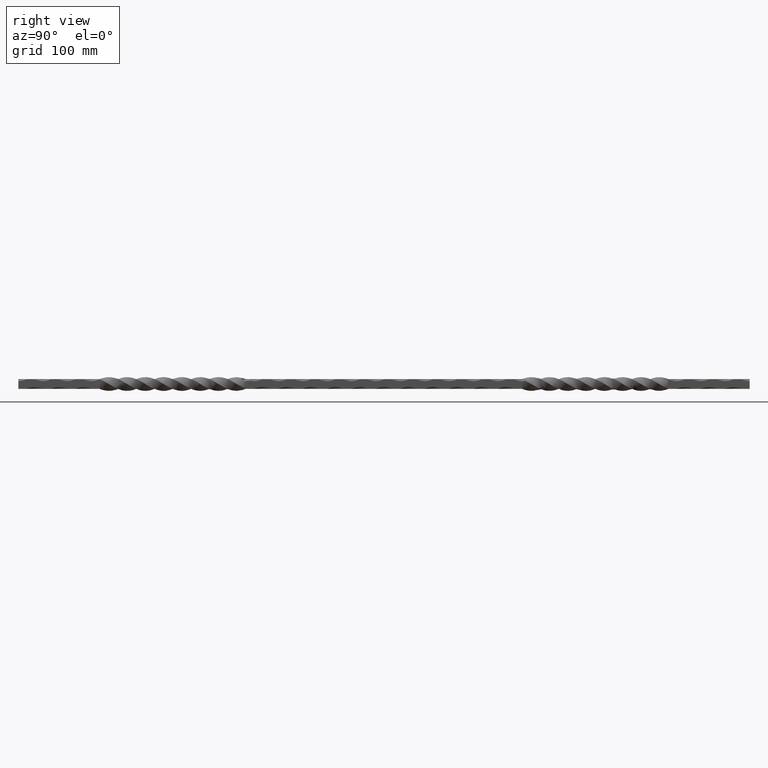
[diagram: clean part render]
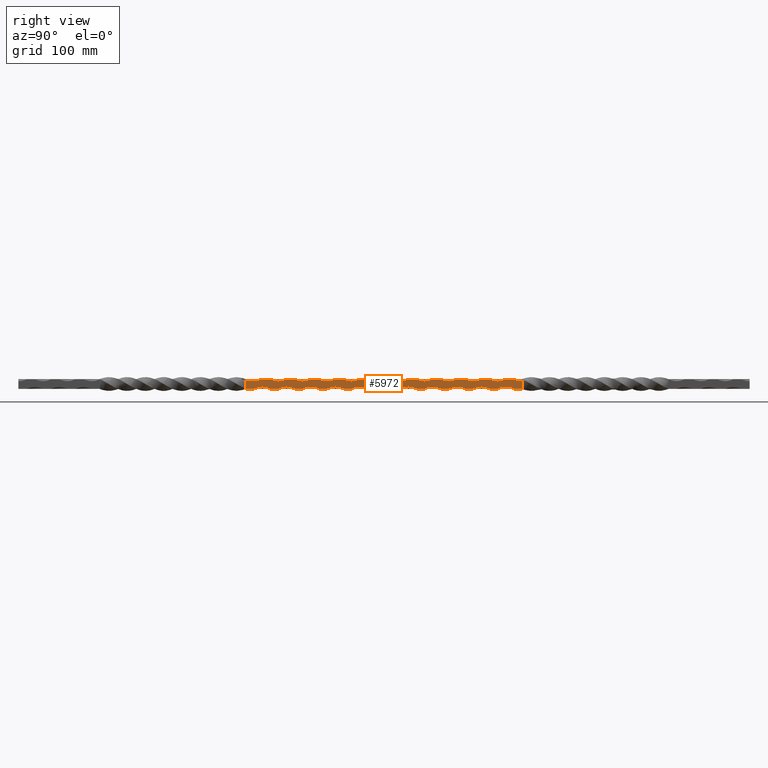
[diagram: same view with one face highlighted and labeled with its STEP entity id]
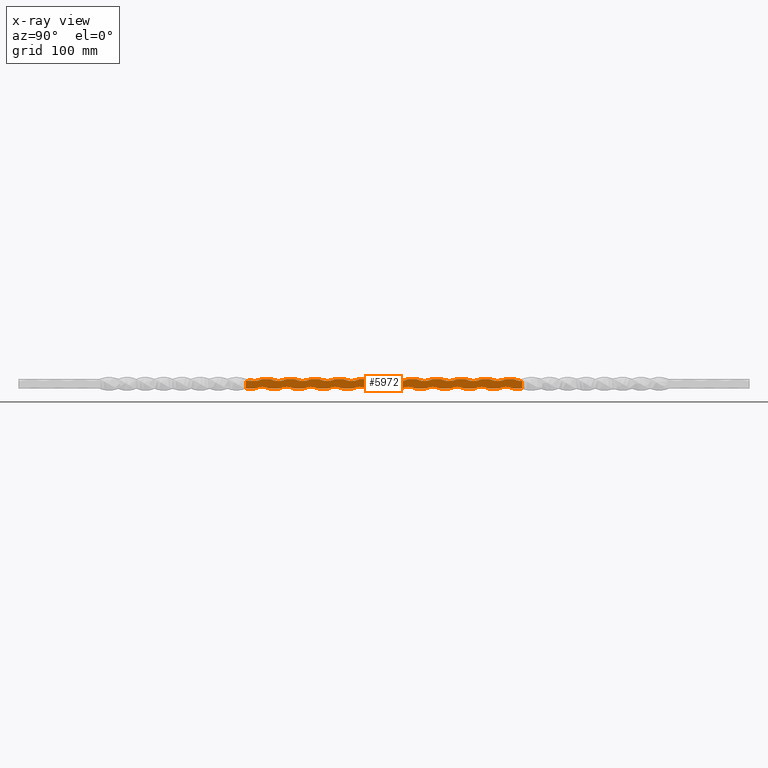
[diagram: x-ray of the same camera — body ghosted, the highlighted face saturated]
A machine part, right view. The second image highlights one B-rep face of the part: STEP entity #5972.
The next image is the same camera in x-ray: the body ghosted, the highlighted face saturated — about 0% of this face is hidden behind the body in this view.
In plain terms, the highlighted planar face has unit normal (-1, 0, -0).
Its self-contained STEP definition (entity closure, byte-faithful):
#19 = CARTESIAN_POINT ( 'NONE',  ( 6.000000002061132598, 9.999999999999980460, -6.000000002061201876 ) ) ;
#41 = LINE ( 'NONE', #7971, #4626 ) ;
#81 = DIRECTION ( 'NONE',  ( 1.000000000000000000, -0.000000000000000000, 5.829654613449112460E-10 ) ) ;
#82 = CARTESIAN_POINT ( 'NONE',  ( 6.000000002061127269, 69.99999999999998579, -6.000000002061191218 ) ) ;
#93 = CARTESIAN_POINT ( 'NONE',  ( 6.000000000000000888, -169.9999999999999716, 0.000000000000000000 ) ) ;
#97 = CARTESIAN_POINT ( 'NONE',  ( 6.000000000000009770, 29.99999999999997158, 6.000000000000015099 ) ) ;
#149 = VERTEX_POINT ( 'NONE', #82 ) ;
#160 = DIRECTION ( 'NONE',  ( -5.829654569535532000E-10, 0.000000000000000000, 1.000000000000000000 ) ) ;
#179 = DIRECTION ( 'NONE',  ( 5.829579466213275269E-10, 0.000000000000000000, -1.000000000000000000 ) ) ;
#192 = ORIENTED_EDGE ( 'NONE', *, *, #12286, .T. ) ;
#276 = CARTESIAN_POINT ( 'NONE',  ( 6.000000012991585585, 89.99999999999997158, -24.75000000206109974 ) ) ;
#280 = EDGE_CURVE ( 'NONE', #6705, #7886, #1454, .T. ) ;
#310 = LINE ( 'NONE', #3577, #1914 ) ;
#324 = CIRCLE ( 'NONE', #8483, 21.24999999999991829 ) ;
#371 = EDGE_CURVE ( 'NONE', #11529, #8957, #324, .T. ) ;
#387 = CARTESIAN_POINT ( 'NONE',  ( 6.000000012991606013, -150.0000000000000284, -24.75000000206114237 ) ) ;
#422 = VERTEX_POINT ( 'NONE', #3006 ) ;
#434 = ORIENTED_EDGE ( 'NONE', *, *, #7089, .F. ) ;
#451 = CARTESIAN_POINT ( 'NONE',  ( 6.000000000000000888, 16.97056276331698754, 6.000000000000000888 ) ) ;
#505 = CARTESIAN_POINT ( 'NONE',  ( 6.000000006995586332, 16.97056276331698754, -5.999999997126680640 ) ) ;
#547 = VERTEX_POINT ( 'NONE', #1356 ) ;
#559 = VERTEX_POINT ( 'NONE', #6486 ) ;
#561 = ORIENTED_EDGE ( 'NONE', *, *, #10464, .T. ) ;
#601 = EDGE_CURVE ( 'NONE', #10573, #2448, #11321, .T. ) ;
#639 = AXIS2_PLACEMENT_3D ( 'NONE', #1816, #5929, #11808 ) ;
#648 = ORIENTED_EDGE ( 'NONE', *, *, #8787, .F. ) ;
#657 = VERTEX_POINT ( 'NONE', #6652 ) ;
#671 = EDGE_CURVE ( 'NONE', #1671, #721, #9749, .T. ) ;
#677 = DIRECTION ( 'NONE',  ( -1.000000000000000000, 0.000000000000000000, -5.829579280190910331E-10 ) ) ;
#721 = VERTEX_POINT ( 'NONE', #12563 ) ;
#742 = ORIENTED_EDGE ( 'NONE', *, *, #9126, .F. ) ;
#751 = ORIENTED_EDGE ( 'NONE', *, *, #3923, .T. ) ;
#770 = CARTESIAN_POINT ( 'NONE',  ( 6.000000000000000888, 16.97056276331698754, 6.000000000000000888 ) ) ;
#786 = EDGE_CURVE ( 'NONE', #4450, #10603, #5357, .T. ) ;
#805 = ORIENTED_EDGE ( 'NONE', *, *, #601, .T. ) ;
#818 = ORIENTED_EDGE ( 'NONE', *, *, #7917, .F. ) ;
#867 = AXIS2_PLACEMENT_3D ( 'NONE', #12920, #6889, #3094 ) ;
#877 = EDGE_CURVE ( 'NONE', #1721, #1924, #9441, .T. ) ;
#881 = ORIENTED_EDGE ( 'NONE', *, *, #6906, .F. ) ;
#942 = VERTEX_POINT ( 'NONE', #7262 ) ;
#953 = VECTOR ( 'NONE', #3741, 1000.000000000000000 ) ;
#968 = VERTEX_POINT ( 'NONE', #12373 ) ;
#1015 = EDGE_CURVE ( 'NONE', #11370, #1924, #3786, .T. ) ;
#1074 = EDGE_CURVE ( 'NONE', #6969, #942, #4582, .T. ) ;
#1112 = VERTEX_POINT ( 'NONE', #11932 ) ;
#1114 = VECTOR ( 'NONE', #9289, 1000.000000000000000 ) ;
#1135 = DIRECTION ( 'NONE',  ( 1.000000000000000000, -0.000000000000000000, 5.829654613449112460E-10 ) ) ;
#1197 = DIRECTION ( 'NONE',  ( -0.000000000000000000, -1.000000000000000000, -0.000000000000000000 ) ) ;
#1294 = CARTESIAN_POINT ( 'NONE',  ( 6.000000006995586332, 16.97056276331698754, -5.999999997126680640 ) ) ;
#1331 = VERTEX_POINT ( 'NONE', #11615 ) ;
#1333 = VERTEX_POINT ( 'NONE', #4748 ) ;
#1334 = DIRECTION ( 'NONE',  ( 1.000000000000000000, -0.000000000000000000, 5.829654613449112460E-10 ) ) ;
#1356 = CARTESIAN_POINT ( 'NONE',  ( 6.000000000000004441, 69.99999999999997158, 6.000000000000001776 ) ) ;
#1361 = EDGE_CURVE ( 'NONE', #5982, #3907, #8517, .T. ) ;
#1396 = DIRECTION ( 'NONE',  ( 5.829579466213274235E-10, 0.000000000000000000, -1.000000000000000000 ) ) ;
#1397 = CARTESIAN_POINT ( 'NONE',  ( 6.000000006995586332, 80.00000000925209065, -6.000000002061185000 ) ) ;
#1404 = LINE ( 'NONE', #7958, #7366 ) ;
#1454 = LINE ( 'NONE', #8541, #10392 ) ;
#1456 = LINE ( 'NONE', #505, #4117 ) ;
#1462 = VERTEX_POINT ( 'NONE', #4966 ) ;
#1638 = EDGE_CURVE ( 'NONE', #11038, #9303, #1456, .T. ) ;
#1643 = VERTEX_POINT ( 'NONE', #7767 ) ;
#1668 = CARTESIAN_POINT ( 'NONE',  ( 6.000000000000000888, 16.97056276331698754, 6.000000000000000888 ) ) ;
#1671 = VERTEX_POINT ( 'NONE', #11244 ) ;
#1721 = VERTEX_POINT ( 'NONE', #2361 ) ;
#1731 = CIRCLE ( 'NONE', #2925, 21.24999999999992184 ) ;
#1747 = DIRECTION ( 'NONE',  ( -5.829654569535532000E-10, 1.632680918566413498E-15, 1.000000000000000000 ) ) ;
#1816 = CARTESIAN_POINT ( 'NONE',  ( 5.999999989069399575, -10.00000000000000888, 24.74999999999991829 ) ) ;
#1834 = VECTOR ( 'NONE', #12123, 1000.000000000000000 ) ;
#1902 = EDGE_LOOP ( 'NONE', ( #9142, #6996, #434, #10215, #6535, #9366, #2985, #9087, #9060, #2307, #7868, #7276, #7219, #6803, #6982, #805, #5395, #5411, #881, #8704, #6014, #192, #1951, #10940, #4816, #818, #8444, #10457, #742, #4961, #4872, #751, #10752, #7962, #9888, #3119, #9363, #6210, #9333, #9166, #10601, #3649, #648, #2202, #8850, #8922, #11090, #561, #12234 ) ) ;
#1914 = VECTOR ( 'NONE', #11580, 1000.000000000000000 ) ;
#1924 = VERTEX_POINT ( 'NONE', #5282 ) ;
#1929 = DIRECTION ( 'NONE',  ( -0.000000000000000000, -1.000000000000000000, -0.000000000000000000 ) ) ;
#1951 = ORIENTED_EDGE ( 'NONE', *, *, #5834, .F. ) ;
#1956 = DIRECTION ( 'NONE',  ( -0.000000000000000000, -1.000000000000000000, -0.000000000000000000 ) ) ;
#2008 = CARTESIAN_POINT ( 'NONE',  ( 5.999999989069398687, -100.0000000000000000, 24.74999999999991829 ) ) ;
#2134 = AXIS2_PLACEMENT_3D ( 'NONE', #276, #10168, #12222 ) ;
#2144 = EDGE_CURVE ( 'NONE', #547, #1462, #310, .T. ) ;
#2183 = VECTOR ( 'NONE', #12812, 1000.000000000000000 ) ;
#2187 = VERTEX_POINT ( 'NONE', #19 ) ;
#2202 = ORIENTED_EDGE ( 'NONE', *, *, #1015, .T. ) ;
#2230 = LINE ( 'NONE', #9346, #2868 ) ;
#2295 = CARTESIAN_POINT ( 'NONE',  ( 6.000000006995586332, 20.00000000925207999, -6.000000002061194770 ) ) ;
#2301 = EDGE_CURVE ( 'NONE', #968, #2448, #4420, .T. ) ;
#2307 = ORIENTED_EDGE ( 'NONE', *, *, #6754, .T. ) ;
#2313 = AXIS2_PLACEMENT_3D ( 'NONE', #5383, #6382, #1396 ) ;
#2328 = EDGE_CURVE ( 'NONE', #11529, #9568, #6454, .T. ) ;
#2353 = CARTESIAN_POINT ( 'NONE',  ( 6.000000001457414633, 169.9999999999999716, 3.499999999999984901 ) ) ;
#2360 = VECTOR ( 'NONE', #11544, 1000.000000000000000 ) ;
#2361 = CARTESIAN_POINT ( 'NONE',  ( 6.000000000000001776, -110.0000000000000284, 6.000000000000000000 ) ) ;
#2364 = DIRECTION ( 'NONE',  ( -5.829654569535532000E-10, 1.959217102279696040E-15, 1.000000000000000000 ) ) ;
#2374 = DIRECTION ( 'NONE',  ( -1.000000000000000000, 0.000000000000000000, -5.829579280190910331E-10 ) ) ;
#2383 = AXIS2_PLACEMENT_3D ( 'NONE', #9114, #11168, #179 ) ;
#2414 = EDGE_CURVE ( 'NONE', #7414, #7763, #2230, .T. ) ;
#2440 = LINE ( 'NONE', #7209, #10263 ) ;
#2448 = VERTEX_POINT ( 'NONE', #10909 ) ;
#2470 = CARTESIAN_POINT ( 'NONE',  ( 6.000000006995586332, 169.9999999999999716, -5.999999997126680640 ) ) ;
#2561 = DIRECTION ( 'NONE',  ( -5.829654569535532000E-10, 1.795949010423054769E-15, 1.000000000000000000 ) ) ;
#2594 = CARTESIAN_POINT ( 'NONE',  ( 5.999999999999978684, 159.9999999999999716, 5.999999999999993783 ) ) ;
#2609 = VERTEX_POINT ( 'NONE', #1397 ) ;
#2621 = DIRECTION ( 'NONE',  ( -5.829654569535532000E-10, 1.959217102279696040E-15, 1.000000000000000000 ) ) ;
#2657 = VERTEX_POINT ( 'NONE', #8457 ) ;
#2787 = VECTOR ( 'NONE', #7838, 1000.000000000000000 ) ;
#2796 = LINE ( 'NONE', #12981, #1834 ) ;
#2802 = VERTEX_POINT ( 'NONE', #3544 ) ;
#2868 = VECTOR ( 'NONE', #1929, 1000.000000000000000 ) ;
#2925 = AXIS2_PLACEMENT_3D ( 'NONE', #8933, #6866, #6908 ) ;
#2931 = VECTOR ( 'NONE', #8183, 1000.000000000000000 ) ;
#2985 = ORIENTED_EDGE ( 'NONE', *, *, #12553, .F. ) ;
#3002 = CIRCLE ( 'NONE', #2383, 21.24999999999992184 ) ;
#3005 = EDGE_CURVE ( 'NONE', #547, #1643, #8648, .T. ) ;
#3006 = CARTESIAN_POINT ( 'NONE',  ( 6.000000001457414633, -169.9999999999984084, 3.499999999141158114 ) ) ;
#3018 = EDGE_CURVE ( 'NONE', #559, #657, #6275, .T. ) ;
#3050 = VERTEX_POINT ( 'NONE', #4276 ) ;
#3067 = CARTESIAN_POINT ( 'NONE',  ( 6.000000002061121940, 129.9999999999999716, -6.000000002061181448 ) ) ;
#3068 = DIRECTION ( 'NONE',  ( -5.829654569535532000E-10, 1.959217102279696040E-15, 1.000000000000000000 ) ) ;
#3087 = DIRECTION ( 'NONE',  ( 1.000000000000000000, -0.000000000000000000, 5.829654613449112460E-10 ) ) ;
#3094 = DIRECTION ( 'NONE',  ( -5.829654569535532000E-10, 1.959217102279696040E-15, 1.000000000000000000 ) ) ;
#3119 = ORIENTED_EDGE ( 'NONE', *, *, #786, .T. ) ;
#3275 = LINE ( 'NONE', #9177, #11240 ) ;
#3282 = CARTESIAN_POINT ( 'NONE',  ( 5.999999989069397799, -160.0000000000000000, 24.74999999999991829 ) ) ;
#3418 = CARTESIAN_POINT ( 'NONE',  ( 6.000000006995586332, -39.99999999074793067, -6.000000002061205429 ) ) ;
#3544 = CARTESIAN_POINT ( 'NONE',  ( 6.000000000000003553, 9.999999999999966249, 6.000000000000001776 ) ) ;
#3564 = LINE ( 'NONE', #7745, #2787 ) ;
#3566 = CARTESIAN_POINT ( 'NONE',  ( 5.999999989069401352, 109.9999999999999858, 24.74999999999992184 ) ) ;
#3577 = CARTESIAN_POINT ( 'NONE',  ( 6.000000000000000888, 16.97056276331698754, 6.000000000000000888 ) ) ;
#3593 = VECTOR ( 'NONE', #5766, 1000.000000000000000 ) ;
#3602 = CIRCLE ( 'NONE', #7483, 21.24999999999991118 ) ;
#3649 = ORIENTED_EDGE ( 'NONE', *, *, #6439, .T. ) ;
#3674 = EDGE_CURVE ( 'NONE', #12117, #11228, #3002, .T. ) ;
#3733 = EDGE_CURVE ( 'NONE', #422, #11706, #9718, .T. ) ;
#3741 = DIRECTION ( 'NONE',  ( -0.000000000000000000, -1.000000000000000000, -0.000000000000000000 ) ) ;
#3786 = LINE ( 'NONE', #9705, #10375 ) ;
#3834 = DIRECTION ( 'NONE',  ( -5.829654569535532000E-10, 3.918434204559392081E-15, 1.000000000000000000 ) ) ;
#3907 = VERTEX_POINT ( 'NONE', #12634 ) ;
#3923 = EDGE_CURVE ( 'NONE', #2657, #1643, #5002, .T. ) ;
#3938 = CARTESIAN_POINT ( 'NONE',  ( 6.000000000000000888, 16.97056276331698754, 6.000000000000000888 ) ) ;
#3942 = LINE ( 'NONE', #4838, #953 ) ;
#3966 = EDGE_CURVE ( 'NONE', #4450, #1462, #3602, .T. ) ;
#3989 = CIRCLE ( 'NONE', #867, 21.24999999999991473 ) ;
#4097 = EDGE_CURVE ( 'NONE', #10573, #2187, #1404, .T. ) ;
#4117 = VECTOR ( 'NONE', #7583, 1000.000000000000000 ) ;
#4125 = CARTESIAN_POINT ( 'NONE',  ( 6.000000000000002665, -50.00000000000002842, 6.000000000000000000 ) ) ;
#4193 = AXIS2_PLACEMENT_3D ( 'NONE', #4434, #12390, #9345 ) ;
#4225 = AXIS2_PLACEMENT_3D ( 'NONE', #12471, #5467, #8682 ) ;
#4233 = DIRECTION ( 'NONE',  ( 1.000000000000000000, -0.000000000000000000, 5.829654613449112460E-10 ) ) ;
#4276 = CARTESIAN_POINT ( 'NONE',  ( 6.000000002061145921, -140.0000000000000000, -6.000000002061227633 ) ) ;
#4340 = DIRECTION ( 'NONE',  ( 5.829579466213274235E-10, 0.000000000000000000, -1.000000000000000000 ) ) ;
#4420 = LINE ( 'NONE', #8602, #9444 ) ;
#4434 = CARTESIAN_POINT ( 'NONE',  ( 6.000000012991590914, 29.99999999999997158, -24.75000000206111039 ) ) ;
#4450 = VERTEX_POINT ( 'NONE', #4618 ) ;
#4499 = EDGE_CURVE ( 'NONE', #6969, #8782, #4681, .T. ) ;
#4568 = DIRECTION ( 'NONE',  ( 1.000000000000000000, -0.000000000000000000, 5.829654613449112460E-10 ) ) ;
#4582 = CIRCLE ( 'NONE', #639, 21.24999999999991473 ) ;
#4609 = CARTESIAN_POINT ( 'NONE',  ( 5.999999989069402240, 139.9999999999999716, 24.74999999999992184 ) ) ;
#4618 = CARTESIAN_POINT ( 'NONE',  ( 6.000000000000003553, 39.99999999999996447, 6.000000000000001776 ) ) ;
#4626 = VECTOR ( 'NONE', #4821, 1000.000000000000000 ) ;
#4681 = LINE ( 'NONE', #770, #3593 ) ;
#4701 = VECTOR ( 'NONE', #12089, 1000.000000000000000 ) ;
#4748 = CARTESIAN_POINT ( 'NONE',  ( 6.000000006995586332, -159.9999999907479378, -6.000000002061226745 ) ) ;
#4816 = ORIENTED_EDGE ( 'NONE', *, *, #4997, .F. ) ;
#4821 = DIRECTION ( 'NONE',  ( 5.829654613449112460E-10, 0.000000000000000000, -1.000000000000000000 ) ) ;
#4838 = CARTESIAN_POINT ( 'NONE',  ( 6.000000000000000888, 16.97056276331698754, 6.000000000000000888 ) ) ;
#4841 = CARTESIAN_POINT ( 'NONE',  ( 6.000000006995586332, -169.9999999999999716, -5.999999997126680640 ) ) ;
#4872 = ORIENTED_EDGE ( 'NONE', *, *, #6248, .F. ) ;
#4888 = PLANE ( 'NONE',  #5557 ) ;
#4961 = ORIENTED_EDGE ( 'NONE', *, *, #671, .T. ) ;
#4966 = CARTESIAN_POINT ( 'NONE',  ( 6.000000000000009770, 59.99999999999997158, 6.000000000000015099 ) ) ;
#4997 = EDGE_CURVE ( 'NONE', #12466, #11228, #3275, .T. ) ;
#5002 = LINE ( 'NONE', #451, #2360 ) ;
#5170 = VERTEX_POINT ( 'NONE', #10405 ) ;
#5171 = CARTESIAN_POINT ( 'NONE',  ( 6.000000000000011546, 149.9999999999999716, 6.000000000000015099 ) ) ;
#5227 = AXIS2_PLACEMENT_3D ( 'NONE', #3282, #1334, #160 ) ;
#5270 = LINE ( 'NONE', #9800, #12312 ) ;
#5282 = CARTESIAN_POINT ( 'NONE',  ( 6.000000000000007994, -90.00000000000002842, 6.000000000000014211 ) ) ;
#5326 = CARTESIAN_POINT ( 'NONE',  ( 5.999999989069401352, 79.99999999999998579, 24.74999999999992184 ) ) ;
#5357 = LINE ( 'NONE', #3938, #8341 ) ;
#5383 = CARTESIAN_POINT ( 'NONE',  ( 6.000000012991595355, -30.00000000000002842, -24.75000000206112105 ) ) ;
#5387 = CARTESIAN_POINT ( 'NONE',  ( 6.000000006995586332, 16.97056276331698754, -5.999999997126680640 ) ) ;
#5395 = ORIENTED_EDGE ( 'NONE', *, *, #2301, .F. ) ;
#5411 = ORIENTED_EDGE ( 'NONE', *, *, #11115, .T. ) ;
#5467 = DIRECTION ( 'NONE',  ( -1.000000000000000000, 0.000000000000000000, -5.829579280190910331E-10 ) ) ;
#5476 = EDGE_CURVE ( 'NONE', #2609, #7763, #7961, .T. ) ;
#5557 = AXIS2_PLACEMENT_3D ( 'NONE', #7952, #7814, #10847 ) ;
#5702 = AXIS2_PLACEMENT_3D ( 'NONE', #5326, #4233, #2364 ) ;
#5714 = CARTESIAN_POINT ( 'NONE',  ( 6.000000002061140592, -80.00000000000001421, -6.000000002061217863 ) ) ;
#5766 = DIRECTION ( 'NONE',  ( -0.000000000000000000, -1.000000000000000000, -0.000000000000000000 ) ) ;
#5785 = VERTEX_POINT ( 'NONE', #3067 ) ;
#5799 = LINE ( 'NONE', #6832, #8951 ) ;
#5817 = CARTESIAN_POINT ( 'NONE',  ( 6.000000012991603349, -120.0000000000000568, -24.75000000206113526 ) ) ;
#5823 = AXIS2_PLACEMENT_3D ( 'NONE', #9068, #1135, #12947 ) ;
#5834 = EDGE_CURVE ( 'NONE', #12117, #5785, #2796, .T. ) ;
#5929 = DIRECTION ( 'NONE',  ( 1.000000000000000000, -0.000000000000000000, 5.829654613449112460E-10 ) ) ;
#5931 = DIRECTION ( 'NONE',  ( -0.000000000000000000, -1.000000000000000000, -0.000000000000000000 ) ) ;
#5972 = ADVANCED_FACE ( 'NONE', ( #6062 ), #4888, .F. ) ;
#5982 = VERTEX_POINT ( 'NONE', #9882 ) ;
#6014 = ORIENTED_EDGE ( 'NONE', *, *, #2414, .F. ) ;
#6062 = FACE_OUTER_BOUND ( 'NONE', #1902, .T. ) ;
#6210 = ORIENTED_EDGE ( 'NONE', *, *, #8463, .T. ) ;
#6223 = CIRCLE ( 'NONE', #8924, 21.24999999999991118 ) ;
#6248 = EDGE_CURVE ( 'NONE', #2657, #721, #6223, .T. ) ;
#6275 = CIRCLE ( 'NONE', #5227, 21.24999999999991473 ) ;
#6308 = CARTESIAN_POINT ( 'NONE',  ( 6.000000012991582921, 119.9999999999999716, -24.75000000206109263 ) ) ;
#6382 = DIRECTION ( 'NONE',  ( -1.000000000000000000, 0.000000000000000000, -5.829579280190910331E-10 ) ) ;
#6390 = DIRECTION ( 'NONE',  ( -0.000000000000000000, -1.000000000000000000, -0.000000000000000000 ) ) ;
#6419 = VERTEX_POINT ( 'NONE', #9676 ) ;
#6439 = EDGE_CURVE ( 'NONE', #10605, #1331, #3564, .T. ) ;
#6454 = LINE ( 'NONE', #7355, #1114 ) ;
#6486 = CARTESIAN_POINT ( 'NONE',  ( 6.000000001109611070, -164.9999999990313313, 4.096610447442614600 ) ) ;
#6499 = EDGE_CURVE ( 'NONE', #1112, #3050, #9658, .T. ) ;
#6516 = EDGE_CURVE ( 'NONE', #1112, #12883, #12014, .T. ) ;
#6535 = ORIENTED_EDGE ( 'NONE', *, *, #6499, .F. ) ;
#6537 = VECTOR ( 'NONE', #10684, 1000.000000000000000 ) ;
#6652 = CARTESIAN_POINT ( 'NONE',  ( 6.000000000000007105, -150.0000000000000284, 6.000000000000014211 ) ) ;
#6705 = VERTEX_POINT ( 'NONE', #7315 ) ;
#6714 = CIRCLE ( 'NONE', #7195, 21.24999999999991829 ) ;
#6754 = EDGE_CURVE ( 'NONE', #5170, #9303, #12162, .T. ) ;
#6803 = ORIENTED_EDGE ( 'NONE', *, *, #11397, .T. ) ;
#6825 = CARTESIAN_POINT ( 'NONE',  ( 6.000000002061135262, -20.00000000000001776, -6.000000002061207205 ) ) ;
#6832 = CARTESIAN_POINT ( 'NONE',  ( 6.000000000000000888, 16.97056276331698754, 6.000000000000000888 ) ) ;
#6866 = DIRECTION ( 'NONE',  ( -1.000000000000000000, 0.000000000000000000, -5.829579280190910331E-10 ) ) ;
#6889 = DIRECTION ( 'NONE',  ( 1.000000000000000000, -0.000000000000000000, 5.829654613449112460E-10 ) ) ;
#6906 = EDGE_CURVE ( 'NONE', #2609, #149, #5270, .T. ) ;
#6908 = DIRECTION ( 'NONE',  ( 5.829579466213275269E-10, 0.000000000000000000, -1.000000000000000000 ) ) ;
#6969 = VERTEX_POINT ( 'NONE', #11851 ) ;
#6974 = CARTESIAN_POINT ( 'NONE',  ( 6.000000000000008882, -30.00000000000002842, 6.000000000000014211 ) ) ;
#6982 = ORIENTED_EDGE ( 'NONE', *, *, #4097, .F. ) ;
#6996 = ORIENTED_EDGE ( 'NONE', *, *, #3733, .T. ) ;
#7035 = CARTESIAN_POINT ( 'NONE',  ( 6.000000001109611070, -164.9999999990313313, 4.096610447442614600 ) ) ;
#7055 = CIRCLE ( 'NONE', #8791, 21.24999999999992184 ) ;
#7089 = EDGE_CURVE ( 'NONE', #1333, #11706, #12785, .T. ) ;
#7195 = AXIS2_PLACEMENT_3D ( 'NONE', #8315, #2374, #11328 ) ;
#7209 = CARTESIAN_POINT ( 'NONE',  ( 6.000000000000000888, 16.97056276331698754, 6.000000000000000888 ) ) ;
#7219 = ORIENTED_EDGE ( 'NONE', *, *, #280, .F. ) ;
#7262 = CARTESIAN_POINT ( 'NONE',  ( 6.000000000000008882, -2.775557561562891351E-14, 6.000000000000014211 ) ) ;
#7276 = ORIENTED_EDGE ( 'NONE', *, *, #8030, .T. ) ;
#7315 = CARTESIAN_POINT ( 'NONE',  ( 6.000000006995588109, -9.999999990747920009, -6.000000002061200099 ) ) ;
#7355 = CARTESIAN_POINT ( 'NONE',  ( 6.000000000000000888, 16.97056276331698754, 6.000000000000000888 ) ) ;
#7366 = VECTOR ( 'NONE', #1956, 1000.000000000000000 ) ;
#7383 = AXIS2_PLACEMENT_3D ( 'NONE', #2008, #81, #3068 ) ;
#7414 = VERTEX_POINT ( 'NONE', #10790 ) ;
#7436 = DIRECTION ( 'NONE',  ( 5.829579466213276303E-10, 3.918434204559391292E-15, -1.000000000000000000 ) ) ;
#7451 = AXIS2_PLACEMENT_3D ( 'NONE', #6308, #10336, #4340 ) ;
#7483 = AXIS2_PLACEMENT_3D ( 'NONE', #7824, #8718, #1747 ) ;
#7583 = DIRECTION ( 'NONE',  ( -0.000000000000000000, -1.000000000000000000, -0.000000000000000000 ) ) ;
#7587 = CARTESIAN_POINT ( 'NONE',  ( 6.000000006995586332, 140.0000000092520906, -6.000000002061174342 ) ) ;
#7700 = VECTOR ( 'NONE', #9587, 1000.000000000000000 ) ;
#7704 = DIRECTION ( 'NONE',  ( 5.829579466213274235E-10, 3.265361837132824630E-15, -1.000000000000000000 ) ) ;
#7745 = CARTESIAN_POINT ( 'NONE',  ( 6.000000000000000888, 16.97056276331698754, 6.000000000000000888 ) ) ;
#7763 = VERTEX_POINT ( 'NONE', #9478 ) ;
#7767 = CARTESIAN_POINT ( 'NONE',  ( 6.000000000000010658, 89.99999999999997158, 6.000000000000015099 ) ) ;
#7793 = CARTESIAN_POINT ( 'NONE',  ( 6.000000002061137927, -50.00000000000001421, -6.000000002061212534 ) ) ;
#7799 = DIRECTION ( 'NONE',  ( 1.000000000000000000, -0.000000000000000000, 5.829654613449112460E-10 ) ) ;
#7814 = DIRECTION ( 'NONE',  ( -1.000000000000000000, 0.000000000000000000, -5.829654613449112460E-10 ) ) ;
#7824 = CARTESIAN_POINT ( 'NONE',  ( 5.999999989069400463, 49.99999999999998579, 24.74999999999992184 ) ) ;
#7831 = CARTESIAN_POINT ( 'NONE',  ( 6.000000012991588250, 59.99999999999997158, -24.75000000206110329 ) ) ;
#7838 = DIRECTION ( 'NONE',  ( -0.000000000000000000, -1.000000000000000000, -0.000000000000000000 ) ) ;
#7868 = ORIENTED_EDGE ( 'NONE', *, *, #1638, .F. ) ;
#7881 = CARTESIAN_POINT ( 'NONE',  ( 6.000000002061119275, 159.9999999999999716, -6.000000002061176119 ) ) ;
#7886 = VERTEX_POINT ( 'NONE', #6825 ) ;
#7917 = EDGE_CURVE ( 'NONE', #8957, #12466, #41, .T. ) ;
#7952 = CARTESIAN_POINT ( 'NONE',  ( 6.000000000000000888, 16.97056276331698754, 6.000000000000000888 ) ) ;
#7958 = CARTESIAN_POINT ( 'NONE',  ( 6.000000006995586332, 16.97056276331698754, -5.999999997126680640 ) ) ;
#7961 = CIRCLE ( 'NONE', #2134, 21.24999999999991829 ) ;
#7962 = ORIENTED_EDGE ( 'NONE', *, *, #2144, .T. ) ;
#7971 = CARTESIAN_POINT ( 'NONE',  ( 6.000000000000000888, 169.9999999999999716, 6.000000000000000888 ) ) ;
#8030 = EDGE_CURVE ( 'NONE', #11038, #7886, #11830, .T. ) ;
#8183 = DIRECTION ( 'NONE',  ( -0.000000000000000000, -1.000000000000000000, -0.000000000000000000 ) ) ;
#8278 = CIRCLE ( 'NONE', #11555, 21.24999999999991118 ) ;
#8315 = CARTESIAN_POINT ( 'NONE',  ( 6.000000012991593579, -2.775557561562891351E-14, -24.75000000206111395 ) ) ;
#8341 = VECTOR ( 'NONE', #8764, 1000.000000000000000 ) ;
#8375 = CARTESIAN_POINT ( 'NONE',  ( 5.999999989069400463, 19.99999999999998934, 24.74999999999992184 ) ) ;
#8395 = DIRECTION ( 'NONE',  ( -1.000000000000000000, 0.000000000000000000, -5.829579280190910331E-10 ) ) ;
#8444 = ORIENTED_EDGE ( 'NONE', *, *, #371, .F. ) ;
#8447 = VECTOR ( 'NONE', #6390, 1000.000000000000000 ) ;
#8457 = CARTESIAN_POINT ( 'NONE',  ( 6.000000000000004441, 99.99999999999995737, 6.000000000000001776 ) ) ;
#8463 = EDGE_CURVE ( 'NONE', #2802, #942, #2440, .T. ) ;
#8483 = AXIS2_PLACEMENT_3D ( 'NONE', #9075, #3087, #10088 ) ;
#8517 = CIRCLE ( 'NONE', #11327, 21.24999999999991473 ) ;
#8541 = CARTESIAN_POINT ( 'NONE',  ( 6.000000006995586332, 16.97056276331698754, -5.999999997126680640 ) ) ;
#8550 = DIRECTION ( 'NONE',  ( 1.000000000000000000, -0.000000000000000000, 5.829654613449112460E-10 ) ) ;
#8578 = DIRECTION ( 'NONE',  ( -0.000000000000000000, -1.000000000000000000, -0.000000000000000000 ) ) ;
#8602 = CARTESIAN_POINT ( 'NONE',  ( 6.000000006995586332, 16.97056276331698754, -5.999999997126680640 ) ) ;
#8648 = CIRCLE ( 'NONE', #5702, 21.24999999999991118 ) ;
#8682 = DIRECTION ( 'NONE',  ( 5.829579466213275269E-10, 0.000000000000000000, -1.000000000000000000 ) ) ;
#8696 = DIRECTION ( 'NONE',  ( -5.829654569535532000E-10, 3.918434204559392081E-15, 1.000000000000000000 ) ) ;
#8704 = ORIENTED_EDGE ( 'NONE', *, *, #5476, .T. ) ;
#8718 = DIRECTION ( 'NONE',  ( 1.000000000000000000, -0.000000000000000000, 5.829654613449112460E-10 ) ) ;
#8760 = B_SPLINE_CURVE_WITH_KNOTS ( 'NONE', 3,
 ( #12120, #12027, #9145, #7035 ),
 .UNSPECIFIED., .F., .F.,
 ( 4, 4 ),
 ( 0.005040950908334026689, 0.01009871966485438588 ),
 .UNSPECIFIED. ) ;
#8764 = DIRECTION ( 'NONE',  ( -0.000000000000000000, -1.000000000000000000, -0.000000000000000000 ) ) ;
#8782 = VERTEX_POINT ( 'NONE', #6974 ) ;
#8787 = EDGE_CURVE ( 'NONE', #11370, #1331, #3989, .T. ) ;
#8791 = AXIS2_PLACEMENT_3D ( 'NONE', #7831, #8849, #12939 ) ;
#8850 = ORIENTED_EDGE ( 'NONE', *, *, #877, .F. ) ;
#8849 = DIRECTION ( 'NONE',  ( -1.000000000000000000, 0.000000000000000000, -5.829579280190910331E-10 ) ) ;
#8922 = ORIENTED_EDGE ( 'NONE', *, *, #10046, .T. ) ;
#8924 = AXIS2_PLACEMENT_3D ( 'NONE', #3566, #12449, #2621 ) ;
#8933 = CARTESIAN_POINT ( 'NONE',  ( 6.000000012991600684, -90.00000000000002842, -24.75000000206113171 ) ) ;
#8951 = VECTOR ( 'NONE', #11738, 1000.000000000000000 ) ;
#8957 = VERTEX_POINT ( 'NONE', #2353 ) ;
#9060 = ORIENTED_EDGE ( 'NONE', *, *, #12457, .F. ) ;
#9068 = CARTESIAN_POINT ( 'NONE',  ( 5.999999989069399575, -40.00000000000000711, 24.74999999999991829 ) ) ;
#9075 = CARTESIAN_POINT ( 'NONE',  ( 5.999999989069387141, 169.9999999999999716, 24.74999999999990052 ) ) ;
#9087 = ORIENTED_EDGE ( 'NONE', *, *, #11131, .T. ) ;
#9095 = AXIS2_PLACEMENT_3D ( 'NONE', #5817, #677, #7704 ) ;
#9114 = CARTESIAN_POINT ( 'NONE',  ( 6.000000012991580256, 149.9999999999999716, -24.75000000206108908 ) ) ;
#9126 = EDGE_CURVE ( 'NONE', #1671, #9568, #12271, .T. ) ;
#9142 = ORIENTED_EDGE ( 'NONE', *, *, #12702, .F. ) ;
#9145 = CARTESIAN_POINT ( 'NONE',  ( 6.000000001341479816, -166.6429344039454747, 3.698870792735918567 ) ) ;
#9166 = ORIENTED_EDGE ( 'NONE', *, *, #4499, .T. ) ;
#9177 = CARTESIAN_POINT ( 'NONE',  ( 6.000000006995586332, 16.97056276331698754, -5.999999997126680640 ) ) ;
#9227 = LINE ( 'NONE', #11895, #2183 ) ;
#9289 = DIRECTION ( 'NONE',  ( -0.000000000000000000, -1.000000000000000000, -0.000000000000000000 ) ) ;
#9303 = VERTEX_POINT ( 'NONE', #7793 ) ;
#9333 = ORIENTED_EDGE ( 'NONE', *, *, #1074, .F. ) ;
#9345 = DIRECTION ( 'NONE',  ( 5.829579466213275269E-10, 1.795949010423053981E-15, -1.000000000000000000 ) ) ;
#9346 = CARTESIAN_POINT ( 'NONE',  ( 6.000000006995586332, 16.97056276331698754, -5.999999997126680640 ) ) ;
#9363 = ORIENTED_EDGE ( 'NONE', *, *, #12378, .F. ) ;
#9366 = ORIENTED_EDGE ( 'NONE', *, *, #6516, .T. ) ;
#9389 = EDGE_CURVE ( 'NONE', #10605, #8782, #12719, .T. ) ;
#9415 = CARTESIAN_POINT ( 'NONE',  ( 6.000000000000001776, -80.00000000000002842, 6.000000000000000000 ) ) ;
#9441 = CIRCLE ( 'NONE', #7383, 21.24999999999991473 ) ;
#9444 = VECTOR ( 'NONE', #5931, 1000.000000000000000 ) ;
#9478 = CARTESIAN_POINT ( 'NONE',  ( 6.000000002061124604, 99.99999999999997158, -6.000000002061186777 ) ) ;
#9529 = LINE ( 'NONE', #5387, #8447 ) ;
#9568 = VERTEX_POINT ( 'NONE', #5171 ) ;
#9574 = CIRCLE ( 'NONE', #10454, 21.24999999999991829 ) ;
#9587 = DIRECTION ( 'NONE',  ( -0.000000000000000000, -1.000000000000000000, -0.000000000000000000 ) ) ;
#9658 = LINE ( 'NONE', #9721, #6537 ) ;
#9676 = CARTESIAN_POINT ( 'NONE',  ( 6.000000006995586332, -99.99999999074793777, -6.000000002061216087 ) ) ;
#9705 = CARTESIAN_POINT ( 'NONE',  ( 6.000000000000000888, 16.97056276331698754, 6.000000000000000888 ) ) ;
#9718 = LINE ( 'NONE', #93, #4701 ) ;
#9721 = CARTESIAN_POINT ( 'NONE',  ( 6.000000006995586332, 16.97056276331698754, -5.999999997126680640 ) ) ;
#9749 = LINE ( 'NONE', #1668, #7700 ) ;
#9800 = CARTESIAN_POINT ( 'NONE',  ( 6.000000006995586332, 16.97056276331698754, -5.999999997126680640 ) ) ;
#9882 = CARTESIAN_POINT ( 'NONE',  ( 6.000000000000000888, -140.0000000000000568, 6.000000000000000000 ) ) ;
#9888 = ORIENTED_EDGE ( 'NONE', *, *, #3966, .F. ) ;
#9949 = EDGE_CURVE ( 'NONE', #1333, #3050, #9574, .T. ) ;
#10046 = EDGE_CURVE ( 'NONE', #1721, #3907, #3942, .T. ) ;
#10088 = DIRECTION ( 'NONE',  ( -5.829654569535530966E-10, 0.000000000000000000, 1.000000000000000000 ) ) ;
#10135 = DIRECTION ( 'NONE',  ( -0.000000000000000000, -1.000000000000000000, -0.000000000000000000 ) ) ;
#10168 = DIRECTION ( 'NONE',  ( -1.000000000000000000, 0.000000000000000000, -5.829579280190910331E-10 ) ) ;
#10215 = ORIENTED_EDGE ( 'NONE', *, *, #9949, .T. ) ;
#10238 = CARTESIAN_POINT ( 'NONE',  ( 6.000000002061143256, -110.0000000000000426, -6.000000002061223192 ) ) ;
#10263 = VECTOR ( 'NONE', #1197, 1000.000000000000000 ) ;
#10336 = DIRECTION ( 'NONE',  ( -1.000000000000000000, 0.000000000000000000, -5.829579280190910331E-10 ) ) ;
#10375 = VECTOR ( 'NONE', #10620, 1000.000000000000000 ) ;
#10392 = VECTOR ( 'NONE', #8578, 1000.000000000000000 ) ;
#10405 = CARTESIAN_POINT ( 'NONE',  ( 6.000000006995586332, -69.99999999074793777, -6.000000002061210758 ) ) ;
#10454 = AXIS2_PLACEMENT_3D ( 'NONE', #387, #8395, #7436 ) ;
#10457 = ORIENTED_EDGE ( 'NONE', *, *, #2328, .T. ) ;
#10464 = EDGE_CURVE ( 'NONE', #5982, #657, #5799, .T. ) ;
#10531 = AXIS2_PLACEMENT_3D ( 'NONE', #4609, #4568, #8696 ) ;
#10573 = VERTEX_POINT ( 'NONE', #2295 ) ;
#10601 = ORIENTED_EDGE ( 'NONE', *, *, #9389, .F. ) ;
#10603 = VERTEX_POINT ( 'NONE', #97 ) ;
#10605 = VERTEX_POINT ( 'NONE', #4125 ) ;
#10620 = DIRECTION ( 'NONE',  ( -0.000000000000000000, -1.000000000000000000, -0.000000000000000000 ) ) ;
#10684 = DIRECTION ( 'NONE',  ( -0.000000000000000000, -1.000000000000000000, -0.000000000000000000 ) ) ;
#10752 = ORIENTED_EDGE ( 'NONE', *, *, #3005, .F. ) ;
#10782 = CARTESIAN_POINT ( 'NONE',  ( 5.999999989069397799, -130.0000000000000284, 24.74999999999991829 ) ) ;
#10790 = CARTESIAN_POINT ( 'NONE',  ( 6.000000006995584556, 110.0000000092520906, -6.000000002061179671 ) ) ;
#10847 = DIRECTION ( 'NONE',  ( -5.829654613449112460E-10, 0.000000000000000000, 1.000000000000000000 ) ) ;
#10909 = CARTESIAN_POINT ( 'NONE',  ( 6.000000002061129933, 39.99999999999997868, -6.000000002061196547 ) ) ;
#10940 = ORIENTED_EDGE ( 'NONE', *, *, #3674, .T. ) ;
#11038 = VERTEX_POINT ( 'NONE', #3418 ) ;
#11090 = ORIENTED_EDGE ( 'NONE', *, *, #1361, .F. ) ;
#11115 = EDGE_CURVE ( 'NONE', #968, #149, #7055, .T. ) ;
#11131 = EDGE_CURVE ( 'NONE', #6419, #12502, #1731, .T. ) ;
#11168 = DIRECTION ( 'NONE',  ( -1.000000000000000000, 0.000000000000000000, -5.829579280190910331E-10 ) ) ;
#11228 = VERTEX_POINT ( 'NONE', #7881 ) ;
#11240 = VECTOR ( 'NONE', #10135, 1000.000000000000000 ) ;
#11244 = CARTESIAN_POINT ( 'NONE',  ( 6.000000000000005329, 129.9999999999999432, 6.000000000000001776 ) ) ;
#11321 = CIRCLE ( 'NONE', #4193, 21.24999999999992184 ) ;
#11327 = AXIS2_PLACEMENT_3D ( 'NONE', #10782, #7799, #3834 ) ;
#11328 = DIRECTION ( 'NONE',  ( 5.829579466213276303E-10, 1.776356839400250859E-15, -1.000000000000000000 ) ) ;
#11370 = VERTEX_POINT ( 'NONE', #9415 ) ;
#11397 = EDGE_CURVE ( 'NONE', #6705, #2187, #6714, .T. ) ;
#11529 = VERTEX_POINT ( 'NONE', #2594 ) ;
#11544 = DIRECTION ( 'NONE',  ( -0.000000000000000000, -1.000000000000000000, -0.000000000000000000 ) ) ;
#11555 = AXIS2_PLACEMENT_3D ( 'NONE', #8375, #8550, #2561 ) ;
#11571 = CIRCLE ( 'NONE', #7451, 21.24999999999992539 ) ;
#11580 = DIRECTION ( 'NONE',  ( -0.000000000000000000, -1.000000000000000000, -0.000000000000000000 ) ) ;
#11615 = CARTESIAN_POINT ( 'NONE',  ( 6.000000000000007994, -60.00000000000002842, 6.000000000000014211 ) ) ;
#11706 = VERTEX_POINT ( 'NONE', #4841 ) ;
#11738 = DIRECTION ( 'NONE',  ( -0.000000000000000000, -1.000000000000000000, -0.000000000000000000 ) ) ;
#11770 = DIRECTION ( 'NONE',  ( -0.000000000000000000, -1.000000000000000000, -0.000000000000000000 ) ) ;
#11808 = DIRECTION ( 'NONE',  ( -5.829654569535532000E-10, 1.795949010423054375E-15, 1.000000000000000000 ) ) ;
#11830 = CIRCLE ( 'NONE', #2313, 21.24999999999992539 ) ;
#11851 = CARTESIAN_POINT ( 'NONE',  ( 6.000000000000002665, -20.00000000000003197, 6.000000000000000000 ) ) ;
#11895 = CARTESIAN_POINT ( 'NONE',  ( 6.000000006995586332, 16.97056276331698754, -5.999999997126680640 ) ) ;
#11932 = CARTESIAN_POINT ( 'NONE',  ( 6.000000006995584556, -129.9999999907479662, -6.000000002061221416 ) ) ;
#12014 = CIRCLE ( 'NONE', #9095, 21.24999999999992539 ) ;
#12027 = CARTESIAN_POINT ( 'NONE',  ( 6.000000001457414633, -168.3096058592646500, 3.499999999269195250 ) ) ;
#12089 = DIRECTION ( 'NONE',  ( -0.000000000000000000, 0.000000000000000000, -1.000000000000000000 ) ) ;
#12117 = VERTEX_POINT ( 'NONE', #7587 ) ;
#12120 = CARTESIAN_POINT ( 'NONE',  ( 6.000000001457414633, -169.9999999999984084, 3.499999999141158114 ) ) ;
#12123 = DIRECTION ( 'NONE',  ( -0.000000000000000000, -1.000000000000000000, -0.000000000000000000 ) ) ;
#12162 = CIRCLE ( 'NONE', #4225, 21.24999999999992184 ) ;
#12222 = DIRECTION ( 'NONE',  ( 5.829579466213276303E-10, 0.000000000000000000, -1.000000000000000000 ) ) ;
#12234 = ORIENTED_EDGE ( 'NONE', *, *, #3018, .F. ) ;
#12271 = CIRCLE ( 'NONE', #10531, 21.24999999999991118 ) ;
#12286 = EDGE_CURVE ( 'NONE', #7414, #5785, #11571, .T. ) ;
#12312 = VECTOR ( 'NONE', #11770, 1000.000000000000000 ) ;
#12373 = CARTESIAN_POINT ( 'NONE',  ( 6.000000006995586332, 50.00000000925208354, -6.000000002061190330 ) ) ;
#12378 = EDGE_CURVE ( 'NONE', #2802, #10603, #8278, .T. ) ;
#12390 = DIRECTION ( 'NONE',  ( -1.000000000000000000, 0.000000000000000000, -5.829579280190910331E-10 ) ) ;
#12449 = DIRECTION ( 'NONE',  ( 1.000000000000000000, -0.000000000000000000, 5.829654613449112460E-10 ) ) ;
#12457 = EDGE_CURVE ( 'NONE', #5170, #12502, #9529, .T. ) ;
#12466 = VERTEX_POINT ( 'NONE', #2470 ) ;
#12471 = CARTESIAN_POINT ( 'NONE',  ( 6.000000012991598020, -60.00000000000002842, -24.75000000206112460 ) ) ;
#12502 = VERTEX_POINT ( 'NONE', #5714 ) ;
#12553 = EDGE_CURVE ( 'NONE', #6419, #12883, #9227, .T. ) ;
#12563 = CARTESIAN_POINT ( 'NONE',  ( 6.000000000000010658, 119.9999999999999716, 6.000000000000015099 ) ) ;
#12634 = CARTESIAN_POINT ( 'NONE',  ( 6.000000000000007105, -120.0000000000000568, 6.000000000000014211 ) ) ;
#12702 = EDGE_CURVE ( 'NONE', #422, #559, #8760, .T. ) ;
#12719 = CIRCLE ( 'NONE', #5823, 21.24999999999991473 ) ;
#12785 = LINE ( 'NONE', #1294, #2931 ) ;
#12812 = DIRECTION ( 'NONE',  ( -0.000000000000000000, -1.000000000000000000, -0.000000000000000000 ) ) ;
#12883 = VERTEX_POINT ( 'NONE', #10238 ) ;
#12920 = CARTESIAN_POINT ( 'NONE',  ( 5.999999989069398687, -70.00000000000000000, 24.74999999999991829 ) ) ;
#12939 = DIRECTION ( 'NONE',  ( 5.829579466213275269E-10, 1.632680918566412710E-15, -1.000000000000000000 ) ) ;
#12947 = DIRECTION ( 'NONE',  ( -5.829654569535532000E-10, 1.632680918566413301E-15, 1.000000000000000000 ) ) ;
#12981 = CARTESIAN_POINT ( 'NONE',  ( 6.000000006995586332, 16.97056276331698754, -5.999999997126680640 ) ) ;